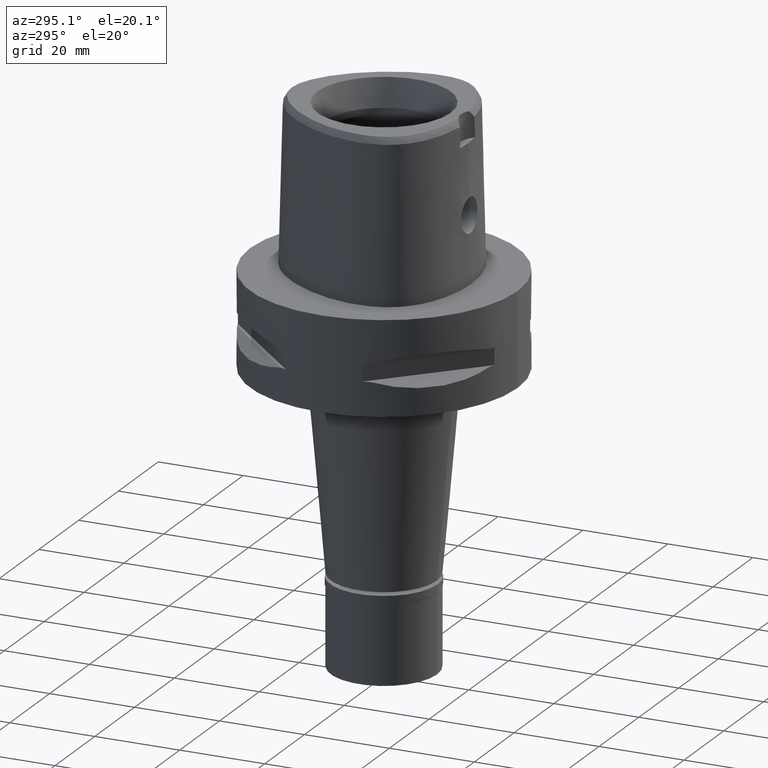
[diagram: clean part render]
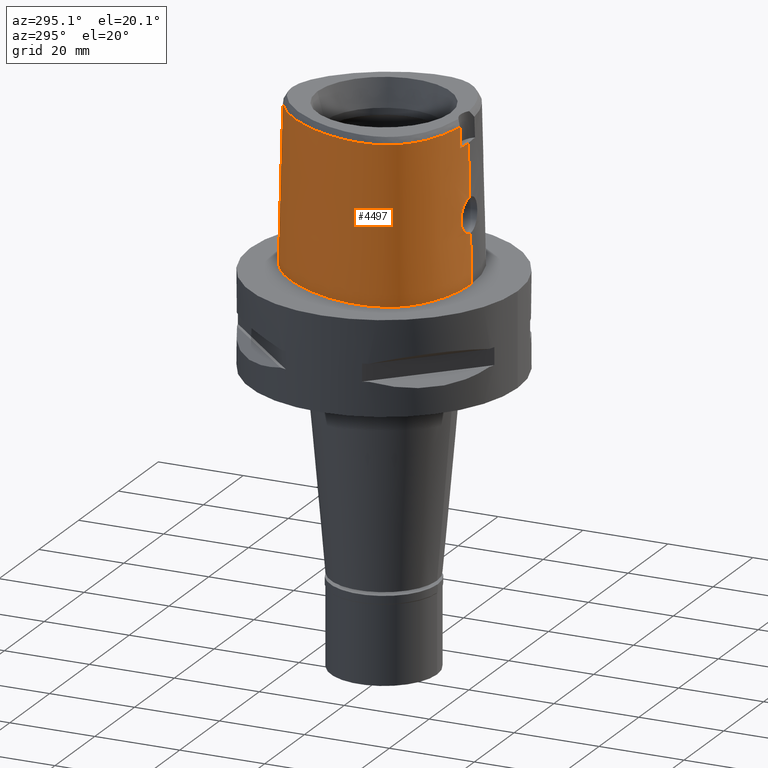
[diagram: same view with one face highlighted and labeled with its STEP entity id]
A machine part, auxiliary view. The second image highlights one B-rep face of the part: STEP entity #4497.
In plain terms, the highlighted face is a freeform B-spline surface patch.
Its self-contained STEP definition (entity closure, byte-faithful):
#9 = CARTESIAN_POINT ( 'NONE',  ( -1.411580633884000040E-12, -20.38876923348000147, 11.44999999999999929 ) ) ;
#11 = CARTESIAN_POINT ( 'NONE',  ( -10.14358087933999997, 18.45723432414000342, 37.25231086994999430 ) ) ;
#12 = CARTESIAN_POINT ( 'NONE',  ( -0.7901461696976432858, 22.56201478746655198, 36.52186244848003582 ) ) ;
#35 = CARTESIAN_POINT ( 'NONE',  ( -1.975954942199726005, -20.32065689222480742, 11.96260358356251707 ) ) ;
#38 = CARTESIAN_POINT ( 'NONE',  ( -19.64947365080064046, -12.82525390055558390, 3.868621856781100099E-07 ) ) ;
#61 = CARTESIAN_POINT ( 'NONE',  ( -21.99640701070999782, -0.2778990171515000052, -0.7304374680383000085 ) ) ;
#70 = CARTESIAN_POINT ( 'NONE',  ( -3.671249123513567802, -19.60525173594972514, 34.94790829898666829 ) ) ;
#79 = EDGE_CURVE ( 'NONE', #1520, #346, #3190, .T. ) ;
#81 = CARTESIAN_POINT ( 'NONE',  ( -3.736722311398999796, -19.67781602443999844, 31.80000000000000071 ) ) ;
#84 = CARTESIAN_POINT ( 'NONE',  ( -18.58171406201999787, -14.18198046186000028, -0.7304374680383000085 ) ) ;
#94 = VERTEX_POINT ( 'NONE', #1607 ) ;
#110 = CARTESIAN_POINT ( 'NONE',  ( -21.31039852049999794, -4.105938495921999554, 37.25231086994999430 ) ) ;
#125 = EDGE_LOOP ( 'NONE', ( #4459, #4981, #2543, #4677, #3762, #357, #4673, #2658 ) ) ;
#137 = CARTESIAN_POINT ( 'NONE',  ( -11.13012658785000042, -18.61140124926999917, 11.93047864462999996 ) ) ;
#160 = CARTESIAN_POINT ( 'NONE',  ( -20.76670354412999941, 4.663413652192000214, -0.7304374680383000085 ) ) ;
#218 = CARTESIAN_POINT ( 'NONE',  ( -2.141634863655994536, -20.13611892945456106, 18.93776449056861111 ) ) ;
#239 = CARTESIAN_POINT ( 'NONE',  ( -2.187955111047391821, -20.13397228737175126, 18.90818030784006609 ) ) ;
#264 = CARTESIAN_POINT ( 'NONE',  ( -2.870809693610419711, -20.24156730632853751, 12.64324605247009359 ) ) ;
#293 = CARTESIAN_POINT ( 'NONE',  ( -4.048193638326265997, -20.04945813672258836, 15.62509932612173635 ) ) ;
#314 = CARTESIAN_POINT ( 'NONE',  ( -3.438474044886171033, -20.17226853620314131, 13.35950353148016134 ) ) ;
#338 = EDGE_CURVE ( 'NONE', #3871, #94, #4310, .T. ) ;
#345 = CARTESIAN_POINT ( 'NONE',  ( -3.024127618930228856, -20.22444760030271738, 12.80466032897667716 ) ) ;
#346 = VERTEX_POINT ( 'NONE', #1345 ) ;
#347 = CARTESIAN_POINT ( 'NONE',  ( -0.5821289336310999651, 22.88453108562000082, 24.59139475729000068 ) ) ;
#348 = CARTESIAN_POINT ( 'NONE',  ( -3.637738201363999835, -19.56971413236999879, 36.52186244848000030 ) ) ;
#357 = ORIENTED_EDGE ( 'NONE', *, *, #1626, .T. ) ;
#375 = CARTESIAN_POINT ( 'NONE',  ( -7.259695529111000134, 20.78233580303999872, 24.59139475729000068 ) ) ;
#396 = CARTESIAN_POINT ( 'NONE',  ( -5.105252914130000264, 22.54305023747000192, -0.7304374680383000085 ) ) ;
#397 = CARTESIAN_POINT ( 'NONE',  ( -7.108589416785344284, 20.52412325828239048, 36.52186244848003582 ) ) ;
#422 = CARTESIAN_POINT ( 'NONE',  ( -14.67337963939701062, -17.21410155407379250, 3.868621856781100099E-07 ) ) ;
#449 = CARTESIAN_POINT ( 'NONE',  ( -20.93173251326372153, -10.60431640231872663, 3.868621856781100099E-07 ) ) ;
#473 = CARTESIAN_POINT ( 'NONE',  ( -20.65879057091999726, -10.48283623375000140, 11.93047864462999996 ) ) ;
#503 = CARTESIAN_POINT ( 'NONE',  ( -1.853278701393999972, -20.08023943164000258, 24.59139475729000068 ) ) ;
#527 = CARTESIAN_POINT ( 'NONE',  ( -20.16779751909999518, 4.447573709553999777, 24.59139475729000068 ) ) ;
#550 = CARTESIAN_POINT ( 'NONE',  ( -17.25769872668999838, 9.963736656822000270, 37.25231086994999430 ) ) ;
#577 = CARTESIAN_POINT ( 'NONE',  ( -21.13154906879000094, -6.714587103787000189, 37.25231086994999430 ) ) ;
#578 = DIRECTION ( 'NONE',  ( -8.648272217539810866E-13, -0.02499051295360945474, -0.9996876883618780463 ) ) ;
#609 = CARTESIAN_POINT ( 'NONE',  ( -1.533377486154680058, -20.16026360294686981, 19.24851053760749053 ) ) ;
#631 = CARTESIAN_POINT ( 'NONE',  ( -3.258446753586496492, -20.07522384658320291, 17.91983021284174882 ) ) ;
#658 = CARTESIAN_POINT ( 'NONE',  ( -3.732557508995410611, -20.04859144260191783, 17.07180291399405192 ) ) ;
#680 = CARTESIAN_POINT ( 'NONE',  ( -3.553766164803828786, -20.15576042543258239, 13.55638603583299862 ) ) ;
#682 = CARTESIAN_POINT ( 'NONE',  ( -7.571159429451234324, 21.31457030413115561, 3.868621856781100099E-07 ) ) ;
#710 = CARTESIAN_POINT ( 'NONE',  ( -2.236225399043195949, -20.13170464962382766, 18.87669531694533376 ) ) ;
#740 = CARTESIAN_POINT ( 'NONE',  ( -3.649474620161942795, -20.05281468735704919, 17.25706831816536990 ) ) ;
#742 = CARTESIAN_POINT ( 'NONE',  ( 0.4569144609283000147, 22.85341810852000322, 24.59139475729000068 ) ) ;
#767 = CARTESIAN_POINT ( 'NONE',  ( 0.6658293095864999955, 22.52368303398999672, 37.25231086994999430 ) ) ;
#798 = CARTESIAN_POINT ( 'NONE',  ( -11.23259756395300712, -18.89324217836399455, 3.868621856781100099E-07 ) ) ;
#804 = EDGE_CURVE ( 'NONE', #1467, #4689, #2917, .T. ) ;
#821 = CARTESIAN_POINT ( 'NONE',  ( -17.80867316128000155, 10.28184213192999863, 11.93047864462999996 ) ) ;
#841 = CARTESIAN_POINT ( 'NONE',  ( -20.34961797717719989, -11.74885741702791542, 3.868621856781100099E-07 ) ) ;
#867 = CARTESIAN_POINT ( 'NONE',  ( -21.68301110806000054, -0.3332743865261000304, 11.93047864462999996 ) ) ;
#880 = CARTESIAN_POINT ( 'NONE',  ( -3.704239276368590961, -19.64128040965313460, 33.37395414949332917 ) ) ;
#896 = CARTESIAN_POINT ( 'NONE',  ( -6.288476595637999544, -20.00290580764000126, 11.93047864462999996 ) ) ;
#907 = B_SPLINE_SURFACE_WITH_KNOTS ( 'NONE', 3, 3, ( 
 ( #1561, #1991, #2353, #767 ),
 ( #4241, #3907, #742, #1223 ),
 ( #2789, #3852, #347, #1917 ),
 ( #3473, #2715, #5049, #3121 ),
 ( #396, #2326, #1534, #3883 ),
 ( #3094, #1151, #375, #4678 ),
 ( #1177, #3522, #4295, #11 ),
 ( #1585, #3146, #4703, #1204 ),
 ( #2379, #821, #3931, #550 ),
 ( #160, #1301, #527, #3621 ),
 ( #61, #867, #4078, #4467 ),
 ( #2809, #1247, #1638, #110 ),
 ( #1740, #1326, #3648, #577 ),
 ( #2428, #4057, #3982, #3289 ),
 ( #3598, #473, #1277, #3192 ),
 ( #4030, #2478, #4391, #4754 ),
 ( #2045, #2452, #2142, #2909 ),
 ( #84, #4366, #4808, #4779 ),
 ( #2097, #967, #1688, #2504 ),
 ( #1659, #2121, #3215, #3245 ),
 ( #2860, #137, #2882, #4854 ),
 ( #2839, #896, #2523, #4006 ),
 ( #4419, #920, #503, #2069 ),
 ( #1714, #3674, #3268, #4836 ),
 ( #4442, #944, #1349, #3360 ) ),
 .UNSPECIFIED., .F., .F., .F.,
 ( 4, 1, 1, 1, 1, 1, 1, 1, 1, 1, 1, 1, 1, 1, 1, 1, 1, 1, 1, 1, 1, 1, 4 ),
 ( 4, 4 ),
 ( -0.01173777939052999923, 0.0000000000000000000, 0.04166666666755999837, 0.08333333333417000666, 0.1250000000007999990, 0.1666666666674000152, 0.2500000000006000200, 0.3333333333337999971, 0.4166666666671000052, 0.5000000000004000134, 0.5416666666670000296, 0.5833333333336000459, 0.6250000000001999512, 0.6458333333335000148, 0.6666666666668999985, 0.6875000000001000311, 0.7083333333333999837, 0.7500000000001000311, 0.7916666666667000474, 0.8333333333333000637, 0.9166666666666000163, 1.000000000000000000, 1.008985696609000060 ),
 ( 6.963397778530999817E-09, 0.9999996448665999793 ),
 .UNSPECIFIED. ) ;
#920 = CARTESIAN_POINT ( 'NONE',  ( -1.870070496672999960, -20.39691401273000082, 11.93047864462999996 ) ) ;
#944 = CARTESIAN_POINT ( 'NONE',  ( 0.6779535359702001385, -20.37023531107000096, 11.93047864462999996 ) ) ;
#967 = CARTESIAN_POINT ( 'NONE',  ( -16.77374388856000209, -15.44292480528000056, 11.93047864462999996 ) ) ;
#974 = DIRECTION ( 'NONE',  ( 2.015997486303959899E-12, 0.02499051290953949525, -0.9996876883629797206 ) ) ;
#976 = CARTESIAN_POINT ( 'NONE',  ( -1.517038990532322940, -20.16080850842840277, 19.25515252244234432 ) ) ;
#996 = CARTESIAN_POINT ( 'NONE',  ( -1.435263460290661985, -20.16346600381253040, 19.28743623777368299 ) ) ;
#1018 = CARTESIAN_POINT ( 'NONE',  ( -2.875757950341307101, -20.24102512592877545, 12.64823125461339082 ) ) ;
#1048 = CARTESIAN_POINT ( 'NONE',  ( -4.019649019913690502, -20.04316019033999652, 16.01163126942445913 ) ) ;
#1058 = B_SPLINE_CURVE_WITH_KNOTS ( 'NONE', 3,
 ( #3752, #3341, #1403, #4191, #682, #1127, #1610, #2738, #1970, #5073, #3543, #1509, #2301, #449, #841, #38, #1948, #3496, #422, #798, #4268, #3171, #2763 ),
 .UNSPECIFIED., .F., .F.,
 ( 4, 1, 1, 1, 1, 1, 1, 1, 1, 1, 1, 1, 1, 1, 1, 1, 1, 1, 1, 1, 4 ),
 ( 0.0000000000000000000, 0.04166666666755999837, 0.08333333333417000666, 0.1250000000007999990, 0.1666666666674000152, 0.2500000000006000200, 0.3333333333337999971, 0.4166666666671000052, 0.5000000000004000134, 0.5416666666670000296, 0.5833333333336000459, 0.6250000000001999512, 0.6458333333335000148, 0.6666666666668999985, 0.6875000000001000311, 0.7083333333333999837, 0.7500000000001000311, 0.7916666666667000474, 0.8333333333333000637, 0.9166666666666000163, 1.000000000000000000 ),
 .UNSPECIFIED. ) ;
#1070 = CARTESIAN_POINT ( 'NONE',  ( -2.647727988110074815, -20.26593689667665643, 12.42012271608845353 ) ) ;
#1094 = CARTESIAN_POINT ( 'NONE',  ( -3.830499027157554526, -20.11062698623148748, 14.18153512544096806 ) ) ;
#1124 = CARTESIAN_POINT ( 'NONE',  ( -3.925407708632547177, -20.04099055260236284, 16.53138977182224423 ) ) ;
#1127 = CARTESIAN_POINT ( 'NONE',  ( -10.74572890433480943, 19.17433593005469561, 3.868621856781100099E-07 ) ) ;
#1151 = CARTESIAN_POINT ( 'NONE',  ( -7.420053183293999766, 21.05635753067999971, 11.93047864462999996 ) ) ;
#1177 = CARTESIAN_POINT ( 'NONE',  ( -10.75753573473000024, 19.18839675345000018, -0.7304374680383000085 ) ) ;
#1178 = CARTESIAN_POINT ( 'NONE',  ( -10.91891098965278495, -18.03046406390649992, 36.52186244848003582 ) ) ;
#1202 = CARTESIAN_POINT ( 'NONE',  ( -1.678454493254771362, -20.33967188086243993, 11.81405957882791391 ) ) ;
#1204 = CARTESIAN_POINT ( 'NONE',  ( -13.69241994434000098, 15.03666404624000030, 37.25231086994999430 ) ) ;
#1223 = CARTESIAN_POINT ( 'NONE',  ( 0.4441907136236000198, 22.53710807434999808, 37.25231086994999430 ) ) ;
#1246 = EDGE_CURVE ( 'NONE', #3871, #1520, #2358, .T. ) ;
#1247 = CARTESIAN_POINT ( 'NONE',  ( -21.94536988021999946, -4.102220498694000739, 11.93047864462999996 ) ) ;
#1274 = CARTESIAN_POINT ( 'NONE',  ( -1.251533273950306446, -19.88005341380082314, 31.80000012753034966 ) ) ;
#1277 = CARTESIAN_POINT ( 'NONE',  ( -20.36913788801999914, -10.35391849966000066, 24.59139475729000068 ) ) ;
#1301 = CARTESIAN_POINT ( 'NONE',  ( -20.46725053161999952, 4.555493680872999107, 11.93047864462999996 ) ) ;
#1326 = CARTESIAN_POINT ( 'NONE',  ( -21.76083721350000033, -6.805026057749000934, 11.93047864462999996 ) ) ;
#1345 = CARTESIAN_POINT ( 'NONE',  ( -1.411580633884000040E-12, -20.38876923348000147, 11.44999999999999929 ) ) ;
#1349 = CARTESIAN_POINT ( 'NONE',  ( 0.6718639866855000697, -20.05378907757000206, 24.59139475729000068 ) ) ;
#1360 = CARTESIAN_POINT ( 'NONE',  ( -0.8941136475711288778, -20.17742596329177474, 19.45229334933670273 ) ) ;
#1400 = CARTESIAN_POINT ( 'NONE',  ( -4.027530768677415551, -20.06783249596207597, 14.99855479653706603 ) ) ;
#1403 = CARTESIAN_POINT ( 'NONE',  ( -2.564517724969215706, 23.29328124047876614, 3.868621856781100099E-07 ) ) ;
#1428 = CARTESIAN_POINT ( 'NONE',  ( -3.740129524201636357, -20.04822853724977705, 17.05370687140990427 ) ) ;
#1442 = EDGE_CURVE ( 'NONE', #346, #4954, #3770, .T. ) ;
#1455 = CARTESIAN_POINT ( 'NONE',  ( -3.686560471766091140, -20.05088322548402857, 17.17709135335212167 ) ) ;
#1467 = VERTEX_POINT ( 'NONE', #2505 ) ;
#1481 = CARTESIAN_POINT ( 'NONE',  ( -2.360389010909459628, -20.12578017861218171, 18.79373387522309358 ) ) ;
#1507 = CARTESIAN_POINT ( 'NONE',  ( -3.215358272888235724, -20.20174660046940218, 13.03391498473859578 ) ) ;
#1509 = CARTESIAN_POINT ( 'NONE',  ( -22.05732873360972235, -6.847636717367676873, 3.868621856781100099E-07 ) ) ;
#1520 = VERTEX_POINT ( 'NONE', #2284 ) ;
#1534 = CARTESIAN_POINT ( 'NONE',  ( -4.868968490111999614, 21.95285554711000131, 24.59139475729000068 ) ) ;
#1551 = CARTESIAN_POINT ( 'NONE',  ( 5.790292211696000582E-11, 23.47499999999000053, 1.448470972793999874E-13 ) ) ;
#1559 = CARTESIAN_POINT ( 'NONE',  ( -1.554881956805410859, -20.34669101430224458, 11.76035872671697469 ) ) ;
#1561 = CARTESIAN_POINT ( 'NONE',  ( 0.7234356448029999331, 23.47140592140999615, -0.7304374680383000085 ) ) ;
#1585 = CARTESIAN_POINT ( 'NONE',  ( -14.42198651596000047, 15.65278599908999979, -0.7304374680383000085 ) ) ;
#1586 = CARTESIAN_POINT ( 'NONE',  ( -1.574807162437000310E-11, 22.56201468012000078, 36.52186680743999858 ) ) ;
#1607 = CARTESIAN_POINT ( 'NONE',  ( -3.736722311398999796, -19.67781602443999844, 31.80000000000000071 ) ) ;
#1610 = CARTESIAN_POINT ( 'NONE',  ( -14.40795638215173113, 15.64093749372103659, 3.868621856781100099E-07 ) ) ;
#1623 = B_SPLINE_CURVE_WITH_KNOTS ( 'NONE', 3,
 ( #348, #3095, #2251, #1178, #1971, #2716, #4576, #4997, #3450, #3523, #4651, #2354, #4679, #5074, #4242, #4220, #2660, #5050, #397, #3070, #1949, #12, #1586 ),
 .UNSPECIFIED., .F., .F.,
 ( 4, 1, 1, 1, 1, 1, 1, 1, 1, 1, 1, 1, 1, 1, 1, 1, 1, 1, 1, 1, 4 ),
 ( 0.0000000000000000000, 0.03580973941716571185, 0.1234633994701219151, 0.1672902294965474546, 0.2111170595229729940, 0.2549438895495037549, 0.2768573045627165108, 0.2987707195758241285, 0.3206841345891420225, 0.3425975496023548894, 0.3864243796287802901, 0.4302512096552058574, 0.4740780396816314246, 0.5617316997345875862, 0.6493853597875438588, 0.7370390198403948823, 0.8246926798932460168, 0.8685195099196715285, 0.9123463399461285706, 0.9561731699725646294, 1.000000000000000000 ),
 .UNSPECIFIED. ) ;
#1626 = EDGE_CURVE ( 'NONE', #2248, #1467, #1623, .T. ) ;
#1638 = CARTESIAN_POINT ( 'NONE',  ( -21.62788420036000048, -4.104079497307999702, 24.59139475729000068 ) ) ;
#1659 = CARTESIAN_POINT ( 'NONE',  ( -14.68244496857000136, -17.23001772569000067, -0.7304374680383000085 ) ) ;
#1688 = CARTESIAN_POINT ( 'NONE',  ( -16.57726046931000141, -15.19304478359999955, 24.59139475729000068 ) ) ;
#1714 = CARTESIAN_POINT ( 'NONE',  ( 0.4560943669427999780, -20.69106767951000236, -0.7304374680383000085 ) ) ;
#1740 = CARTESIAN_POINT ( 'NONE',  ( -22.07548128586000047, -6.850245534728999885, -0.7304374680383000085 ) ) ;
#1771 = CARTESIAN_POINT ( 'NONE',  ( -1.656252726920341756, -20.15609978928734236, 19.19765142506813049 ) ) ;
#1798 = CARTESIAN_POINT ( 'NONE',  ( -1.492522727687786155, -20.16161937968068329, 19.26502569008773591 ) ) ;
#1815 = CARTESIAN_POINT ( 'NONE',  ( -4.044848056823933113, -20.04744994059100804, 15.72117637690397629 ) ) ;
#1822 = CARTESIAN_POINT ( 'NONE',  ( -1.131694588381000000E-11, -20.67499999999999716, 1.477336771434999891E-13 ) ) ;
#1839 = CARTESIAN_POINT ( 'NONE',  ( -3.377353639916972128, -20.18061854612786377, 13.26476903757087378 ) ) ;
#1865 = CARTESIAN_POINT ( 'NONE',  ( -3.952964639633001820, -20.08622609015963434, 14.60890045225522726 ) ) ;
#1888 = CARTESIAN_POINT ( 'NONE',  ( -4.049848995936168095, -20.05861656952081873, 15.25314035233473753 ) ) ;
#1915 = CARTESIAN_POINT ( 'NONE',  ( -2.781497320433751419, -20.10345565782016308, 18.44409576488591540 ) ) ;
#1917 = CARTESIAN_POINT ( 'NONE',  ( -0.5657070442374999564, 22.56734930644000059, 37.25231086994999430 ) ) ;
#1948 = CARTESIAN_POINT ( 'NONE',  ( -18.56841064437526612, -14.16937987614192984, 3.868621856781100099E-07 ) ) ;
#1949 = CARTESIAN_POINT ( 'NONE',  ( -2.376843896518158861, 22.39422508474254769, 36.52186244848003582 ) ) ;
#1968 = CARTESIAN_POINT ( 'NONE',  ( -2.086814383355429126, -20.31269213283762198, 12.02647857452288882 ) ) ;
#1970 = CARTESIAN_POINT ( 'NONE',  ( -20.74942739964291150, 4.657187496702960061, 3.868621856781100099E-07 ) ) ;
#1971 = CARTESIAN_POINT ( 'NONE',  ( -14.22011356156273898, -16.41829364186076745, 36.52186244848003582 ) ) ;
#1988 = CARTESIAN_POINT ( 'NONE',  ( -1.035503055404822126, -20.37488775911208450, 11.54570873351855909 ) ) ;
#1991 = CARTESIAN_POINT ( 'NONE',  ( 0.7042335330640999702, 23.15549829226999989, 11.93047864462999996 ) ) ;
#2045 = CARTESIAN_POINT ( 'NONE',  ( -19.66427014197999767, -12.83600704362000045, -0.7304374680383000085 ) ) ;
#2069 = CARTESIAN_POINT ( 'NONE',  ( -1.836486906116000073, -19.76356485055000078, 37.25231086994999430 ) ) ;
#2097 = CARTESIAN_POINT ( 'NONE',  ( -16.97022730782000366, -15.69280482697000068, -0.7304374680383000085 ) ) ;
#2121 = CARTESIAN_POINT ( 'NONE',  ( -14.52531267946000071, -16.95413756378999892, 11.93047864462999996 ) ) ;
#2142 = CARTESIAN_POINT ( 'NONE',  ( -19.15132538609999813, -12.46323161481999975, 24.59139475729000068 ) ) ;
#2150 = CARTESIAN_POINT ( 'NONE',  ( -1.543048130380533900, -20.15993798682081817, 19.24453660913605546 ) ) ;
#2181 = CARTESIAN_POINT ( 'NONE',  ( -1.768917262159672932, -20.15190475906431189, 19.14568281053833942 ) ) ;
#2200 = CARTESIAN_POINT ( 'NONE',  ( -2.621021505587191935, -20.11233874864635141, 18.58822781674975033 ) ) ;
#2227 = CARTESIAN_POINT ( 'NONE',  ( -2.841055161951133723, -20.10000556631502278, 18.38634273631048188 ) ) ;
#2247 = CARTESIAN_POINT ( 'NONE',  ( -2.904838724128950833, -20.23782704190355020, 12.67778573503163209 ) ) ;
#2248 = VERTEX_POINT ( 'NONE', #3408 ) ;
#2251 = CARTESIAN_POINT ( 'NONE',  ( -7.300578999876627506, -19.07170748891746470, 36.52186244848003582 ) ) ;
#2271 = CARTESIAN_POINT ( 'NONE',  ( -3.744859968352743262, -20.12555785049272217, 13.95773689203802626 ) ) ;
#2284 = CARTESIAN_POINT ( 'NONE',  ( 0.0000000000000000000, -20.18628283968999781, 19.55000000000000071 ) ) ;
#2298 = CARTESIAN_POINT ( 'NONE',  ( -3.738021026999629015, -20.04832921641926902, 17.05876513949563389 ) ) ;
#2301 = CARTESIAN_POINT ( 'NONE',  ( -21.55524825079097440, -8.996025387860560940, 3.868621856781100099E-07 ) ) ;
#2324 = CARTESIAN_POINT ( 'NONE',  ( -1.572984596533237189, -20.34569619827906095, 11.76794029727453861 ) ) ;
#2326 = CARTESIAN_POINT ( 'NONE',  ( -4.987110702121000827, 22.24795289229000161, 11.93047864462999996 ) ) ;
#2353 = CARTESIAN_POINT ( 'NONE',  ( 0.6850314213252999274, 22.83959066313000363, 24.59139475729000068 ) ) ;
#2354 = CARTESIAN_POINT ( 'NONE',  ( -21.14970188363649228, -6.717195958887733909, 36.52186244848003582 ) ) ;
#2358 = B_SPLINE_CURVE_WITH_KNOTS ( 'NONE', 3,
 ( #3147, #3932, #3983, #2790 ),
 .UNSPECIFIED., .F., .F.,
 ( 4, 4 ),
 ( 0.0000000000000000000, 1.000000000000000000 ),
 .UNSPECIFIED. ) ;
#2379 = CARTESIAN_POINT ( 'NONE',  ( -18.08416037858000180, 10.44089486947999923, -0.7304374680383000085 ) ) ;
#2399 = CARTESIAN_POINT ( 'NONE',  ( -0.5047993661878775740, -20.38876923348001213, 11.45000000000000462 ) ) ;
#2428 = CARTESIAN_POINT ( 'NONE',  ( -21.57281238754000086, -9.001246193674999674, -0.7304374680383000085 ) ) ;
#2452 = CARTESIAN_POINT ( 'NONE',  ( -19.40779776404000145, -12.64961932922000010, 11.93047864462999996 ) ) ;
#2478 = CARTESIAN_POINT ( 'NONE',  ( -20.09084482102999658, -11.59945466509999967, 11.93047864462999996 ) ) ;
#2504 = CARTESIAN_POINT ( 'NONE',  ( -16.38077705004999984, -14.94316476191000120, 37.25231086994999430 ) ) ;
#2505 = CARTESIAN_POINT ( 'NONE',  ( -1.574807162437000310E-11, 22.56201468012000078, 36.52186680743999858 ) ) ;
#2523 = CARTESIAN_POINT ( 'NONE',  ( -6.232237615517999707, -19.68961197084999881, 24.59139475729000068 ) ) ;
#2543 = ORIENTED_EDGE ( 'NONE', *, *, #1246, .F. ) ;
#2552 = CARTESIAN_POINT ( 'NONE',  ( -1.411580633884000040E-12, -20.38876923348000147, 11.44999999999999929 ) ) ;
#2581 = CARTESIAN_POINT ( 'NONE',  ( -3.704467467891558563, -20.04996865237282577, 17.13733399074462938 ) ) ;
#2608 = CARTESIAN_POINT ( 'NONE',  ( -3.520475118944293325, -20.16064927175153443, 13.49656734865233076 ) ) ;
#2633 = CARTESIAN_POINT ( 'NONE',  ( -4.001055636211792610, -20.04208398455364915, 16.14154222857164811 ) ) ;
#2657 = CARTESIAN_POINT ( 'NONE',  ( -3.466483550184904505, -20.16833646136366198, 13.40542637770943735 ) ) ;
#2658 = ORIENTED_EDGE ( 'NONE', *, *, #4427, .T. ) ;
#2660 = CARTESIAN_POINT ( 'NONE',  ( -13.70645028110926233, 15.04851272300978771, 36.52186244848003582 ) ) ;
#2685 = CARTESIAN_POINT ( 'NONE',  ( -3.724287987559549595, -20.04899117660404073, 17.09139312267754462 ) ) ;
#2715 = CARTESIAN_POINT ( 'NONE',  ( -2.503210923954999778, 22.99958948127000014, 11.93047864462999996 ) ) ;
#2716 = CARTESIAN_POINT ( 'NONE',  ( -16.39211280191552689, -14.95758113318803773, 36.52186244848003582 ) ) ;
#2738 = CARTESIAN_POINT ( 'NONE',  ( -18.06826687685656552, 10.43171874514600006, 3.868621856781100099E-07 ) ) ;
#2763 = CARTESIAN_POINT ( 'NONE',  ( -1.131694588381000000E-11, -20.67499999999999716, 1.477336771434999891E-13 ) ) ;
#2778 = CARTESIAN_POINT ( 'NONE',  ( -3.637738201363999835, -19.56971413236999879, 36.52186244848000030 ) ) ;
#2789 = CARTESIAN_POINT ( 'NONE',  ( -0.6149727124180999205, 23.51889464398999863, -0.7304374680383000085 ) ) ;
#2790 = CARTESIAN_POINT ( 'NONE',  ( 0.0000000000000000000, -20.18628283968999781, 19.55000000000000071 ) ) ;
#2809 = CARTESIAN_POINT ( 'NONE',  ( -22.26285556008000199, -4.100361500079999999, -0.7304374680383000085 ) ) ;
#2837 = CARTESIAN_POINT ( 'NONE',  ( -2.503154198993178703, -19.81241979316373047, 31.80000012753034966 ) ) ;
#2839 = CARTESIAN_POINT ( 'NONE',  ( -6.344715575757000181, -20.31619964444000104, -0.7304374680383000085 ) ) ;
#2860 = CARTESIAN_POINT ( 'NONE',  ( -11.23887130070999874, -18.91049775515000064, -0.7304374680383000085 ) ) ;
#2882 = CARTESIAN_POINT ( 'NONE',  ( -11.02138187498999855, -18.31230474338000036, 24.59139475729000068 ) ) ;
#2909 = CARTESIAN_POINT ( 'NONE',  ( -18.89485300815999835, -12.27684390043000029, 37.25231086994999430 ) ) ;
#2917 = LINE ( 'NONE', #4474, #4047 ) ;
#2918 = CARTESIAN_POINT ( 'NONE',  ( 0.0000000000000000000, -20.18628283968999781, 19.55000000000000071 ) ) ;
#2958 = CARTESIAN_POINT ( 'NONE',  ( -3.921269265871360155, -20.09311890564809033, 14.47775228273900439 ) ) ;
#2989 = CARTESIAN_POINT ( 'NONE',  ( -2.852856104024934503, -20.09931387729061214, 18.37467926461877354 ) ) ;
#3014 = CARTESIAN_POINT ( 'NONE',  ( -3.788010122577050609, -20.11815763408465330, 14.06624340820799901 ) ) ;
#3037 = CARTESIAN_POINT ( 'NONE',  ( -3.755562140673117000, -20.12374194796143101, 13.98397501487588279 ) ) ;
#3065 = CARTESIAN_POINT ( 'NONE',  ( -3.623054736483411364, -20.05423874947321750, 17.31100359226989838 ) ) ;
#3070 = CARTESIAN_POINT ( 'NONE',  ( -4.757642277158917743, 21.67478330407648812, 36.52186244848003582 ) ) ;
#3094 = CARTESIAN_POINT ( 'NONE',  ( -7.580410837477000285, 21.33037925832999804, -0.7304374680383000085 ) ) ;
#3095 = CARTESIAN_POINT ( 'NONE',  ( -4.467522189395204180, -19.48130287050727816, 36.52186244848003582 ) ) ;
#3121 = CARTESIAN_POINT ( 'NONE',  ( -2.373090362480000159, 22.37624368641000316, 37.25231086994999430 ) ) ;
#3137 = B_SPLINE_CURVE_WITH_KNOTS ( 'NONE', 3,
 ( #2778, #70, #880, #4330 ),
 .UNSPECIFIED., .F., .F.,
 ( 4, 4 ),
 ( 0.0000000000000000000, 1.000000000000000000 ),
 .UNSPECIFIED. ) ;
#3143 = CARTESIAN_POINT ( 'NONE',  ( -1.758544761680902013, -20.33485355119289295, 11.85123508312823226 ) ) ;
#3146 = CARTESIAN_POINT ( 'NONE',  ( -14.17879765875000153, 15.44741201480000115, 11.93047864462999996 ) ) ;
#3147 = CARTESIAN_POINT ( 'NONE',  ( 2.041042029990999821E-08, -19.88004246002000031, 31.80000004972000127 ) ) ;
#3171 = CARTESIAN_POINT ( 'NONE',  ( -2.113823672490067640, -20.67499999033125491, 3.868621856781100099E-07 ) ) ;
#3190 = B_SPLINE_CURVE_WITH_KNOTS ( 'NONE', 3,
 ( #2918, #3703, #4865, #1360, #4475, #4086, #4112, #996, #1798, #976, #609, #2150, #1771, #2181, #3320, #4893, #3728, #218, #239, #3393, #710, #1481, #3825, #2200, #4969, #1915, #3364, #2227, #2989, #4992, #4139, #631, #3414, #4547, #3065, #740, #1455, #2581, #2685, #658, #2298, #1428, #3849, #1124, #2633, #1048, #4912, #1815, #293, #4216, #3749, #1888, #1400, #1865, #2958, #4937, #1094, #3014, #4189, #3037, #4239, #2271, #4164, #4596, #680, #2608, #2657, #314, #3773, #3447, #1839, #5016, #1507, #4623, #345, #4571, #2247, #4518, #1018, #264, #1070, #3799, #1968, #35, #4752, #3143, #1202, #3950, #4314, #2324, #3929, #1559, #1988, #2399, #9 ),
 .UNSPECIFIED., .F., .F.,
 ( 4, 2, 2, 1, 1, 1, 2, 2, 2, 2, 1, 2, 2, 2, 1, 1, 1, 2, 2, 2, 2, 2, 1, 1, 2, 2, 2, 2, 1, 2, 2, 2, 2, 1, 1, 1, 2, 2, 2, 2, 1, 2, 2, 2, 1, 1, 1, 2, 2, 2, 2, 2, 1, 1, 2, 2, 4 ),
 ( 0.0000000000000000000, 0.06249999999998998024, 0.09374999999998502587, 0.1093749999999826666, 0.1171874999999813344, 0.1210937499999806682, 0.1230468749999801825, 0.1249999999999796829, 0.1562499999999726608, 0.1718749999999691080, 0.1796874999999675260, 0.1835937499999668043, 0.1874999999999660549, 0.2187499999999598377, 0.2343749999999567291, 0.2421874999999552303, 0.2460937499999545364, 0.2480468749999544253, 0.2499999999999543421, 0.3124999999999447664, 0.3437499999999402145, 0.3593749999999383826, 0.3671874999999379385, 0.3710937499999381051, 0.3730468749999382716, 0.3749999999999383826, 0.4374999999999451550, 0.4687499999999481526, 0.4843749999999496514, 0.4921874999999504285, 0.4999999999999511502, 0.5624999999999581446, 0.5937499999999618083, 0.6093749999999638067, 0.6171874999999648059, 0.6210937499999652500, 0.6230468749999654721, 0.6249999999999656941, 0.6562499999999708011, 0.6718749999999732436, 0.6796874999999744649, 0.6835937499999750200, 0.6874999999999755751, 0.7187499999999785727, 0.7343749999999801270, 0.7421874999999806821, 0.7460937499999810152, 0.7480468749999811262, 0.7499999999999812372, 0.8124999999999873435, 0.8437499999999902300, 0.8593749999999917843, 0.8671874999999925615, 0.8710937499999930056, 0.8730468749999932276, 0.8749999999999934497, 1.000000000000000000 ),
 .UNSPECIFIED. ) ;
#3192 = CARTESIAN_POINT ( 'NONE',  ( -20.07948520512000101, -10.22500076556999993, 37.25231086994999430 ) ) ;
#3215 = CARTESIAN_POINT ( 'NONE',  ( -14.36818039036000094, -16.67825740190000161, 24.59139475729000068 ) ) ;
#3245 = CARTESIAN_POINT ( 'NONE',  ( -14.21104810125000029, -16.40237723999999986, 37.25231086994999430 ) ) ;
#3266 = CARTESIAN_POINT ( 'NONE',  ( 2.041042029990999821E-08, -19.88004246002000031, 31.80000004972000127 ) ) ;
#3268 = CARTESIAN_POINT ( 'NONE',  ( 0.4479792516635000554, -20.05810170590000041, 24.59139475729000068 ) ) ;
#3289 = CARTESIAN_POINT ( 'NONE',  ( -20.65947776032999883, -8.729764435109998999, 37.25231086994999430 ) ) ;
#3320 = CARTESIAN_POINT ( 'NONE',  ( -1.944872162919951908, -20.14473830020724066, 19.05307826099487301 ) ) ;
#3341 = CARTESIAN_POINT ( 'NONE',  ( -0.8548392416143821837, 23.47499999033582441, 3.868621856781100099E-07 ) ) ;
#3360 = CARTESIAN_POINT ( 'NONE',  ( 0.6657744374009000321, -19.73734284405999873, 37.25231086994999430 ) ) ;
#3364 = CARTESIAN_POINT ( 'NONE',  ( -2.823299992936004976, -20.10104229143709276, 18.40378355436401492 ) ) ;
#3393 = CARTESIAN_POINT ( 'NONE',  ( -2.218923952806688860, -20.13252298611815405, 18.88809933006218955 ) ) ;
#3408 = CARTESIAN_POINT ( 'NONE',  ( -3.637738201363999835, -19.56971413236999879, 36.52186244848000030 ) ) ;
#3414 = CARTESIAN_POINT ( 'NONE',  ( -3.474550157063373224, -20.06258684786147484, 17.58509941784220487 ) ) ;
#3447 = CARTESIAN_POINT ( 'NONE',  ( -3.388781880796565726, -20.17907268769699769, 13.28211842279016430 ) ) ;
#3450 = CARTESIAN_POINT ( 'NONE',  ( -19.55745547456266564, -11.29150218116491367, 36.52186244848003582 ) ) ;
#3473 = CARTESIAN_POINT ( 'NONE',  ( -2.568271204691999987, 23.31126237870000040, -0.7304374680383000085 ) ) ;
#3496 = CARTESIAN_POINT ( 'NONE',  ( -16.95889171993596634, -15.67838866423727850, 3.868621856781100099E-07 ) ) ;
#3522 = CARTESIAN_POINT ( 'NONE',  ( -10.55288411627000045, 18.94467594368000007, 11.93047864462999996 ) ) ;
#3523 = CARTESIAN_POINT ( 'NONE',  ( -20.09619618741513847, -10.23243843868366731, 36.52186244848003582 ) ) ;
#3543 = CARTESIAN_POINT ( 'NONE',  ( -22.24453906884865262, -4.100468750056842637, 3.868621856781100099E-07 ) ) ;
#3575 = EDGE_CURVE ( 'NONE', #2248, #94, #3137, .T. ) ;
#3598 = CARTESIAN_POINT ( 'NONE',  ( -20.94844325381999894, -10.61175396783999858, -0.7304374680383000085 ) ) ;
#3621 = CARTESIAN_POINT ( 'NONE',  ( -19.86834450658000151, 4.339653738235000446, 37.25231086994999430 ) ) ;
#3648 = CARTESIAN_POINT ( 'NONE',  ( -21.44619314115000108, -6.759806580768001005, 24.59139475729000068 ) ) ;
#3674 = CARTESIAN_POINT ( 'NONE',  ( 0.4520368093032000600, -20.37458469270000094, 11.93047864462999996 ) ) ;
#3703 = CARTESIAN_POINT ( 'NONE',  ( -0.2473412322726143697, -20.18628283969000137, 19.54999999999999361 ) ) ;
#3728 = CARTESIAN_POINT ( 'NONE',  ( -2.095753548405625999, -20.13818364214462164, 18.96577014706424791 ) ) ;
#3749 = CARTESIAN_POINT ( 'NONE',  ( -4.050018014422890111, -20.05167593067615428, 15.52805627100565999 ) ) ;
#3752 = CARTESIAN_POINT ( 'NONE',  ( 5.790292211696000582E-11, 23.47499999999000053, 1.448470972793999874E-13 ) ) ;
#3762 = ORIENTED_EDGE ( 'NONE', *, *, #3575, .F. ) ;
#3770 = LINE ( 'NONE', #2552, #4506 ) ;
#3773 = CARTESIAN_POINT ( 'NONE',  ( -3.408875187705127541, -20.17633333109277771, 13.31312751153840424 ) ) ;
#3799 = CARTESIAN_POINT ( 'NONE',  ( -2.421503357395112577, -20.28648737493439924, 12.24279215501454487 ) ) ;
#3825 = CARTESIAN_POINT ( 'NONE',  ( -2.467128207654242900, -20.12044499745017845, 18.71456023906639032 ) ) ;
#3849 = CARTESIAN_POINT ( 'NONE',  ( -3.848403410399269919, -20.04310851184510156, 16.79149714040344321 ) ) ;
#3852 = CARTESIAN_POINT ( 'NONE',  ( -0.5985508230245999428, 23.20171286479999750, 11.93047864462999996 ) ) ;
#3871 = VERTEX_POINT ( 'NONE', #4921 ) ;
#3883 = CARTESIAN_POINT ( 'NONE',  ( -4.750826278103000178, 21.65775820193999834, 37.25231086994999430 ) ) ;
#3907 = CARTESIAN_POINT ( 'NONE',  ( 0.4696382082330000096, 23.16972814268999770, 11.93047864462999996 ) ) ;
#3929 = CARTESIAN_POINT ( 'NONE',  ( -1.559921522259132054, -20.34641501698339283, 11.76246137009516879 ) ) ;
#3931 = CARTESIAN_POINT ( 'NONE',  ( -17.53318594399000219, 10.12278939436999892, 24.59139475729000068 ) ) ;
#3932 = CARTESIAN_POINT ( 'NONE',  ( 6.819711485387707943E-09, -19.98212988583443916, 27.71666688228243558 ) ) ;
#3950 = CARTESIAN_POINT ( 'NONE',  ( -1.638635025841908899, -20.34200884320527081, 11.79610711465513972 ) ) ;
#3952 = FACE_OUTER_BOUND ( 'NONE', #125, .T. ) ;
#3982 = CARTESIAN_POINT ( 'NONE',  ( -20.96392263605999773, -8.820258354631999254, 24.59139475729000068 ) ) ;
#3983 = CARTESIAN_POINT ( 'NONE',  ( 6.839676024735101277E-09, -20.08420636276309423, 23.63333344114114709 ) ) ;
#4006 = CARTESIAN_POINT ( 'NONE',  ( -6.175998635398999959, -19.37631813404999903, 37.25231086994999430 ) ) ;
#4030 = CARTESIAN_POINT ( 'NONE',  ( -20.36546124054000018, -11.75800452942999996, -0.7304374680383000085 ) ) ;
#4047 = VECTOR ( 'NONE', #974, 1000.000000000000227 ) ;
#4057 = CARTESIAN_POINT ( 'NONE',  ( -21.26836751180000107, -8.910752274153001196, 11.93047864462999996 ) ) ;
#4078 = CARTESIAN_POINT ( 'NONE',  ( -21.36961520540999970, -0.3886497559006000246, 24.59139475729000068 ) ) ;
#4086 = CARTESIAN_POINT ( 'NONE',  ( -1.222079501492472575, -20.16967619644331933, 19.36182732690641117 ) ) ;
#4112 = CARTESIAN_POINT ( 'NONE',  ( -1.320565687271253008, -20.16697761691574442, 19.32976498246146235 ) ) ;
#4139 = CARTESIAN_POINT ( 'NONE',  ( -3.081149392581267410, -20.08583124627751815, 18.14629112889929274 ) ) ;
#4164 = CARTESIAN_POINT ( 'NONE',  ( -3.698122373791104422, -20.13343971464007609, 13.84482020407635794 ) ) ;
#4189 = CARTESIAN_POINT ( 'NONE',  ( -3.765489374949923640, -20.12204791086963240, 14.00864527312733010 ) ) ;
#4191 = CARTESIAN_POINT ( 'NONE',  ( -5.098437013673422058, 22.52602538161582046, 3.868621856781100099E-07 ) ) ;
#4216 = CARTESIAN_POINT ( 'NONE',  ( -4.049663826248575127, -20.05088590020231365, 15.56119206774690866 ) ) ;
#4220 = CARTESIAN_POINT ( 'NONE',  ( -17.27359245833004664, 9.972912913898404952, 36.52186244848003582 ) ) ;
#4239 = CARTESIAN_POINT ( 'NONE',  ( -3.748882549353760307, -20.12487725615872947, 13.96753193210146016 ) ) ;
#4241 = CARTESIAN_POINT ( 'NONE',  ( 0.4823619555375999735, 23.48603817685999928, -0.7304374680383000085 ) ) ;
#4242 = CARTESIAN_POINT ( 'NONE',  ( -19.88562090098568902, 4.345879983792084289, 36.52186244848003582 ) ) ;
#4268 = CARTESIAN_POINT ( 'NONE',  ( -6.341471017493179652, -20.29812499043638852, 3.868621856781100099E-07 ) ) ;
#4295 = CARTESIAN_POINT ( 'NONE',  ( -10.34823249779999976, 18.70095513390999997, 24.59139475729000068 ) ) ;
#4310 = B_SPLINE_CURVE_WITH_KNOTS ( 'NONE', 3,
 ( #3266, #1274, #2837, #81 ),
 .UNSPECIFIED., .F., .F.,
 ( 4, 4 ),
 ( 0.0000000000000000000, 1.000000000000000000 ),
 .UNSPECIFIED. ) ;
#4314 = CARTESIAN_POINT ( 'NONE',  ( -1.592612062467763989, -20.34460894491105165, 11.77623291199321720 ) ) ;
#4330 = CARTESIAN_POINT ( 'NONE',  ( -3.736722311398999796, -19.67781602443999844, 31.80000000000000071 ) ) ;
#4366 = CARTESIAN_POINT ( 'NONE',  ( -18.35112161164000000, -13.96357042508999946, 11.93047864462999996 ) ) ;
#4391 = CARTESIAN_POINT ( 'NONE',  ( -19.81622840152000009, -11.44090480077000116, 24.59139475729000068 ) ) ;
#4419 = CARTESIAN_POINT ( 'NONE',  ( -1.886862291950999859, -20.71358859382999640, -0.7304374680383000085 ) ) ;
#4427 = EDGE_CURVE ( 'NONE', #4689, #4954, #1058, .T. ) ;
#4442 = CARTESIAN_POINT ( 'NONE',  ( 0.6840430852549000962, -20.68668154458000075, -0.7304374680383000085 ) ) ;
#4459 = ORIENTED_EDGE ( 'NONE', *, *, #1442, .F. ) ;
#4467 = CARTESIAN_POINT ( 'NONE',  ( -21.05621930275000153, -0.4440251252751999944, 37.25231086994999430 ) ) ;
#4474 = CARTESIAN_POINT ( 'NONE',  ( -1.574807162437000310E-11, 22.56201468012000078, 36.52186680743999858 ) ) ;
#4475 = CARTESIAN_POINT ( 'NONE',  ( -1.025211814377291697, -20.17465818941732536, 19.42048404905546022 ) ) ;
#4497 = ADVANCED_FACE ( 'NONE', ( #3952 ), #907, .T. ) ;
#4506 = VECTOR ( 'NONE', #578, 1000.000000000000114 ) ;
#4518 = CARTESIAN_POINT ( 'NONE',  ( -2.887412005235024282, -20.23974548682598495, 12.66003157092551668 ) ) ;
#4547 = CARTESIAN_POINT ( 'NONE',  ( -3.538328569009117519, -20.05892019842420027, 17.47427695038242845 ) ) ;
#4571 = CARTESIAN_POINT ( 'NONE',  ( -2.945118222697384880, -20.23335776654019114, 12.71958560101069402 ) ) ;
#4576 = CARTESIAN_POINT ( 'NONE',  ( -17.90324032096355822, -13.53935111954911008, 36.52186244848003582 ) ) ;
#4596 = CARTESIAN_POINT ( 'NONE',  ( -3.646271025383653441, -20.14180172674314306, 13.73229968810163193 ) ) ;
#4623 = CARTESIAN_POINT ( 'NONE',  ( -3.089131642921038701, -20.21685897408075760, 12.88004451868244971 ) ) ;
#4651 = CARTESIAN_POINT ( 'NONE',  ( -20.67704215116261324, -8.734985316449016324, 36.52186244848003582 ) ) ;
#4673 = ORIENTED_EDGE ( 'NONE', *, *, #804, .T. ) ;
#4677 = ORIENTED_EDGE ( 'NONE', *, *, #338, .T. ) ;
#4678 = CARTESIAN_POINT ( 'NONE',  ( -7.099337874927999614, 20.50831407539000040, 37.25231086994999430 ) ) ;
#4679 = CARTESIAN_POINT ( 'NONE',  ( -21.32871527669911771, -4.105831244393672641, 36.52186244848003582 ) ) ;
#4689 = VERTEX_POINT ( 'NONE', #1551 ) ;
#4703 = CARTESIAN_POINT ( 'NONE',  ( -13.93560880154999992, 15.24203803052000161, 24.59139475729000068 ) ) ;
#4752 = CARTESIAN_POINT ( 'NONE',  ( -1.812541018722119590, -20.33144879143472039, 11.87771303033471959 ) ) ;
#4754 = CARTESIAN_POINT ( 'NONE',  ( -19.54161198201000005, -11.28235493643999909, 37.25231086994999430 ) ) ;
#4779 = CARTESIAN_POINT ( 'NONE',  ( -17.88993671086999626, -13.52675035154999961, 37.25231086994999430 ) ) ;
#4808 = CARTESIAN_POINT ( 'NONE',  ( -18.12052916125999857, -13.74516038831999865, 24.59139475729000068 ) ) ;
#4836 = CARTESIAN_POINT ( 'NONE',  ( 0.4439216940238999709, -19.74161871909999633, 37.25231086994999430 ) ) ;
#4854 = CARTESIAN_POINT ( 'NONE',  ( -10.91263716214000112, -18.01320823750000244, 37.25231086994999430 ) ) ;
#4865 = CARTESIAN_POINT ( 'NONE',  ( -0.5036866637163955884, -20.18406862059044826, 19.52728785670090517 ) ) ;
#4893 = CARTESIAN_POINT ( 'NONE',  ( -2.004675599378036743, -20.14220382833444845, 19.01976680094072947 ) ) ;
#4912 = CARTESIAN_POINT ( 'NONE',  ( -4.038031914720691340, -20.04584209172335818, 15.81781984752944581 ) ) ;
#4921 = CARTESIAN_POINT ( 'NONE',  ( 2.041042029990999821E-08, -19.88004246002000031, 31.80000004972000127 ) ) ;
#4937 = CARTESIAN_POINT ( 'NONE',  ( -3.862607746689349586, -20.10460055501469867, 14.28038032241867050 ) ) ;
#4954 = VERTEX_POINT ( 'NONE', #1822 ) ;
#4969 = CARTESIAN_POINT ( 'NONE',  ( -2.696415149898507835, -20.10825975497924034, 18.52316981035199461 ) ) ;
#4981 = ORIENTED_EDGE ( 'NONE', *, *, #79, .F. ) ;
#4992 = CARTESIAN_POINT ( 'NONE',  ( -2.857836109605274455, -20.09902107152586126, 18.36973246307368157 ) ) ;
#4997 = CARTESIAN_POINT ( 'NONE',  ( -18.90964971338653555, -12.28759719904964420, 36.52186244848003582 ) ) ;
#5016 = CARTESIAN_POINT ( 'NONE',  ( -3.294464282139363043, -20.19175818983861959, 13.14063372506666560 ) ) ;
#5049 = CARTESIAN_POINT ( 'NONE',  ( -2.438150643216999924, 22.68791658383999987, 24.59139475729000068 ) ) ;
#5050 = CARTESIAN_POINT ( 'NONE',  ( -10.15538788053370212, 18.47129535094025243, 36.52186244848003582 ) ) ;
#5073 = CARTESIAN_POINT ( 'NONE',  ( -21.97832646828880598, -0.2810937516920624102, 3.868621856781100099E-07 ) ) ;
#5074 = CARTESIAN_POINT ( 'NONE',  ( -21.07430010672627319, -0.4408303445193631487, 36.52186244848003582 ) ) ;